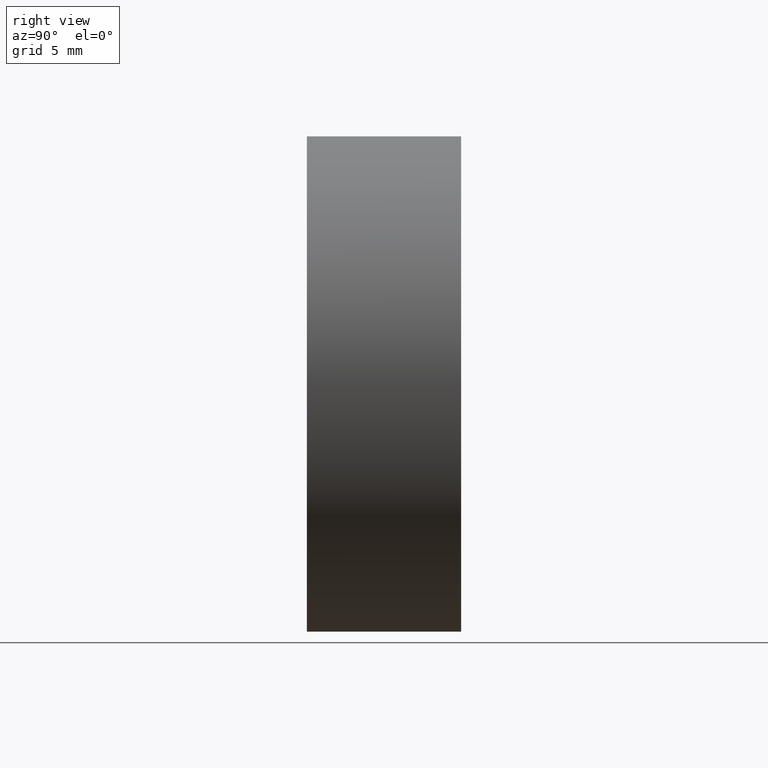
[diagram: clean part render]
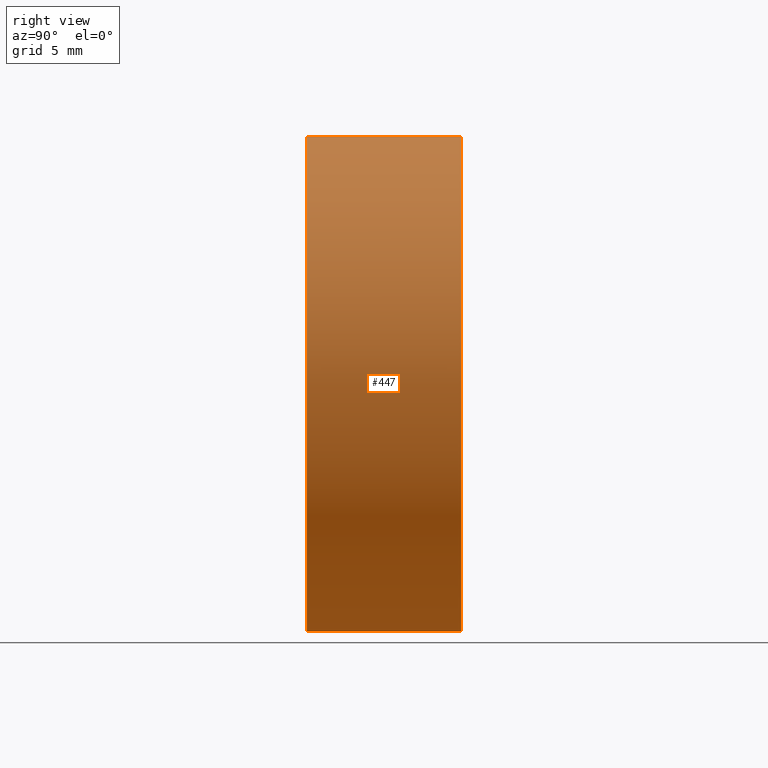
[diagram: same view with one face highlighted and labeled with its STEP entity id]
A machine part, right view. The second image highlights one B-rep face of the part: STEP entity #447.
In plain terms, the highlighted cylindrical surface (partial cylindrical patch) has radius 12.7 mm, axis along (-0, -1, -0).
Its self-contained STEP definition (entity closure, byte-faithful):
#20 = ORIENTED_EDGE ( 'NONE', *, *, #290, .F. ) ;
#23 = DIRECTION ( 'NONE',  ( 0.0000000000000000000, 1.000000000000000000, 0.0000000000000000000 ) ) ;
#25 = DIRECTION ( 'NONE',  ( 0.0000000000000000000, 1.000000000000000000, 0.0000000000000000000 ) ) ;
#32 = DIRECTION ( 'NONE',  ( -0.0000000000000000000, -1.000000000000000000, -0.0000000000000000000 ) ) ;
#56 = CARTESIAN_POINT ( 'NONE',  ( 3.528455752875468300, 3.799999999999999400, 12.19999999999999900 ) ) ;
#61 = CARTESIAN_POINT ( 'NONE',  ( 0.0000000000000000000, -3.799999999999999800, 0.0000000000000000000 ) ) ;
#66 = CARTESIAN_POINT ( 'NONE',  ( 0.0000000000000000000, 3.799999999999999800, 0.0000000000000000000 ) ) ;
#86 = ORIENTED_EDGE ( 'NONE', *, *, #280, .F. ) ;
#100 = CARTESIAN_POINT ( 'NONE',  ( 3.528455752875471400, -10.87460246232960000, -12.19999999999999900 ) ) ;
#105 = VERTEX_POINT ( 'NONE', #218 ) ;
#116 = VECTOR ( 'NONE', #455, 1000.000000000000000 ) ;
#122 = FACE_OUTER_BOUND ( 'NONE', #277, .T. ) ;
#127 = ORIENTED_EDGE ( 'NONE', *, *, #288, .T. ) ;
#183 = DIRECTION ( 'NONE',  ( 0.0000000000000000000, 0.0000000000000000000, 1.000000000000000000 ) ) ;
#187 = ORIENTED_EDGE ( 'NONE', *, *, #353, .T. ) ;
#207 = VERTEX_POINT ( 'NONE', #422 ) ;
#218 = CARTESIAN_POINT ( 'NONE',  ( 3.528455752875468300, -3.799999999999999400, 12.19999999999999900 ) ) ;
#259 = LINE ( 'NONE', #100, #471 ) ;
#267 = CARTESIAN_POINT ( 'NONE',  ( 0.0000000000000000000, 3.799999999999999800, 0.0000000000000000000 ) ) ;
#269 = LINE ( 'NONE', #429, #116 ) ;
#277 = EDGE_LOOP ( 'NONE', ( #20, #86, #127, #187 ) ) ;
#280 = EDGE_CURVE ( 'NONE', #105, #302, #269, .T. ) ;
#288 = EDGE_CURVE ( 'NONE', #105, #332, #510, .T. ) ;
#290 = EDGE_CURVE ( 'NONE', #302, #207, #414, .T. ) ;
#297 = AXIS2_PLACEMENT_3D ( 'NONE', #66, #25, #183 ) ;
#302 = VERTEX_POINT ( 'NONE', #56 ) ;
#313 = AXIS2_PLACEMENT_3D ( 'NONE', #267, #32, #420 ) ;
#332 = VERTEX_POINT ( 'NONE', #505 ) ;
#338 = CYLINDRICAL_SURFACE ( 'NONE', #313, 12.69999999999999900 ) ;
#353 = EDGE_CURVE ( 'NONE', #332, #207, #259, .T. ) ;
#370 = DIRECTION ( 'NONE',  ( -0.0000000000000000000, 1.000000000000000000, -0.0000000000000000000 ) ) ;
#409 = DIRECTION ( 'NONE',  ( 0.0000000000000000000, 0.0000000000000000000, 1.000000000000000000 ) ) ;
#414 = CIRCLE ( 'NONE', #297, 12.69999999999999900 ) ;
#420 = DIRECTION ( 'NONE',  ( 0.0000000000000000000, 0.0000000000000000000, -1.000000000000000000 ) ) ;
#422 = CARTESIAN_POINT ( 'NONE',  ( 3.528455752875471400, 3.799999999999999400, -12.19999999999999900 ) ) ;
#429 = CARTESIAN_POINT ( 'NONE',  ( 3.528455752875468300, -10.87460246232960000, 12.19999999999999900 ) ) ;
#447 = ADVANCED_FACE ( 'NONE', ( #122 ), #338, .T. ) ;
#455 = DIRECTION ( 'NONE',  ( -0.0000000000000000000, 1.000000000000000000, -0.0000000000000000000 ) ) ;
#457 = AXIS2_PLACEMENT_3D ( 'NONE', #61, #23, #409 ) ;
#471 = VECTOR ( 'NONE', #370, 1000.000000000000000 ) ;
#505 = CARTESIAN_POINT ( 'NONE',  ( 3.528455752875474500, -3.799999999999999800, -12.19999999999999900 ) ) ;
#510 = CIRCLE ( 'NONE', #457, 12.69999999999999900 ) ;